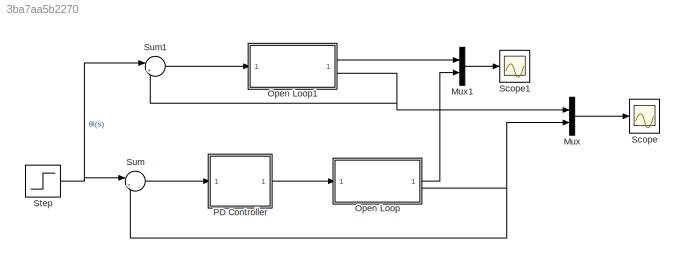
MODEL slx_3ba7aa5b2270
KIND model
CONFIG AbsTol = auto
CONFIG EnableMultiTasking = off
CONFIG FixedStep = auto
CONFIG MaxStep = auto
CONFIG MinStep = auto
CONFIG RelTol = 1e-3
CONFIG SampleTimeConstraint = Unconstrained
CONFIG SolverName = VariableStepAuto
CONFIG StartTime = 0.0
CONFIG StopTime = 0.15
BLOCK [Mux] Mux
  DisplayOption = bar
  Inputs = 2
BLOCK [Mux] Mux1
  DisplayOption = bar
  Inputs = 2
  NameLocation = right
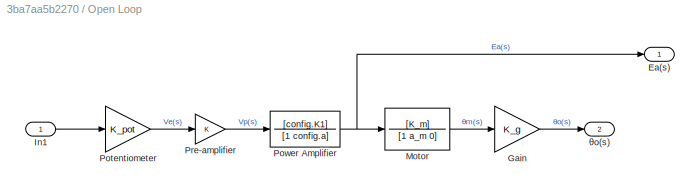
BLOCK [SubSystem] Open Loop
BLOCK [Outport] Open Loop/Ea(s)
BLOCK [Gain] Open Loop/Gain
  Gain = K_g
BLOCK [Inport] Open Loop/In1
BLOCK [TransferFcn] Open Loop/Motor
  Denominator = [1 a_m 0]
  Numerator = [K_m]
BLOCK [Gain] Open Loop/Potentiometer
  Gain = K_pot
BLOCK [TransferFcn] Open Loop/Power Amplifier
  Denominator = [1 config.a]
  Numerator = [config.K1]
BLOCK [Gain] Open Loop/Pre-amplifier
  Gain = K
BLOCK [Outport] Open Loop/θo(s)
  Port = 2
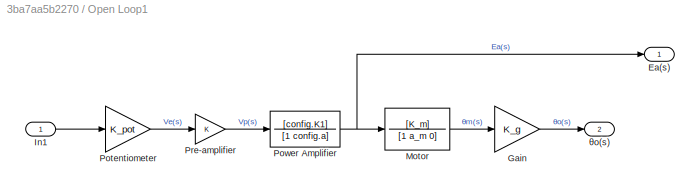
BLOCK [SubSystem] Open Loop1
BLOCK [Outport] Open Loop1/Ea(s)
BLOCK [Gain] Open Loop1/Gain
  Gain = K_g
BLOCK [Inport] Open Loop1/In1
BLOCK [TransferFcn] Open Loop1/Motor
  Denominator = [1 a_m 0]
  Numerator = [K_m]
BLOCK [Gain] Open Loop1/Potentiometer
  Gain = K_pot
BLOCK [TransferFcn] Open Loop1/Power Amplifier
  Denominator = [1 config.a]
  Numerator = [config.K1]
BLOCK [Gain] Open Loop1/Pre-amplifier
  Gain = K
BLOCK [Outport] Open Loop1/θo(s)
  Port = 2
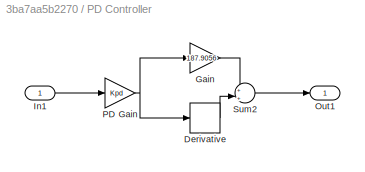
BLOCK [SubSystem] PD Controller
BLOCK [Derivative] PD Controller/Derivative
BLOCK [Gain] PD Controller/Gain
  Gain = 187.9056
BLOCK [Inport] PD Controller/In1
BLOCK [Outport] PD Controller/Out1
BLOCK [Gain] PD Controller/PD Gain
  Gain = Kpd
BLOCK [Sum] PD Controller/Sum2
  Inputs = +|+
BLOCK [Scope] Scope
  Floating = off
  NumInputPorts = 1
  ScopeSpecificationString = Simulink.scopes.TimeScopeBlockCfg('CurrentConfiguration', extmgr.ConfigurationSet(extmgr.Configuration('Core','General UI',true),extmgr.Configuration('Core','Source UI',true),extmgr.Configuration('Sources','WiredSimulink',true),extmgr.Configuration('Visuals','Time Domain',true,'SerializedDisplays',{struct('MinYLimReal','-0.14268','MaxYLimReal','1.28413','YLabelReal','','MinYLimMag','0.00000','MaxY...<+1408ch>
BLOCK [Scope] Scope1
  Floating = off
  NumInputPorts = 1
  ScopeSpecificationString = Simulink.scopes.TimeScopeBlockCfg('CurrentConfiguration', extmgr.ConfigurationSet(extmgr.Configuration('Core','General UI',true),extmgr.Configuration('Core','Source UI',true),extmgr.Configuration('Sources','WiredSimulink',true,'DataLoggingVariableName','ScopeData1'),extmgr.Configuration('Visuals','Time Domain',true),extmgr.Configuration('Tools','Plot Navigation',true),extmgr.Configuration('Tools',...<+40ch>
BLOCK [Step] Step
  SampleTime = 0
  Time = 0
BLOCK [Sum] Sum
  Inputs = |+-
BLOCK [Sum] Sum1
  Inputs = |+-
LINE Mux1:1 -> Scope1:1
LINE Mux:1 -> Scope:1
LINE Open Loop/Gain:1 -> Open Loop/θo(s):1
LINE Open Loop/In1:1 -> Open Loop/Potentiometer:1
LINE Open Loop/Motor:1 -> Open Loop/Gain:1
LINE Open Loop/Potentiometer:1 -> Open Loop/Pre-amplifier:1
NET Open Loop/Power Amplifier:1 -> Open Loop/Ea(s):1, Open Loop/Motor:1
LINE Open Loop/Pre-amplifier:1 -> Open Loop/Power Amplifier:1
LINE Open Loop1/Gain:1 -> Open Loop1/θo(s):1
LINE Open Loop1/In1:1 -> Open Loop1/Potentiometer:1
LINE Open Loop1/Motor:1 -> Open Loop1/Gain:1
LINE Open Loop1/Potentiometer:1 -> Open Loop1/Pre-amplifier:1
NET Open Loop1/Power Amplifier:1 -> Open Loop1/Ea(s):1, Open Loop1/Motor:1
LINE Open Loop1/Pre-amplifier:1 -> Open Loop1/Power Amplifier:1
LINE Open Loop1:1 -> Mux1:1
NET Open Loop1:2 -> Mux:1, Sum1:2
LINE Open Loop:1 -> Mux1:2
NET Open Loop:2 -> Mux:2, Sum:2
LINE PD Controller/Derivative:1 -> PD Controller/Sum2:2
LINE PD Controller/Gain:1 -> PD Controller/Sum2:1
LINE PD Controller/In1:1 -> PD Controller/PD Gain:1
NET PD Controller/PD Gain:1 -> PD Controller/Derivative:1, PD Controller/Gain:1
LINE PD Controller/Sum2:1 -> PD Controller/Out1:1
LINE PD Controller:1 -> Open Loop:1
NET Step:1 -> Sum1:1, Sum:1
LINE Sum1:1 -> Open Loop1:1
LINE Sum:1 -> PD Controller:1
note: NET lines group one-source signal fan-out (src -> all destinations, sorted); 1:1 wires keep LINE
